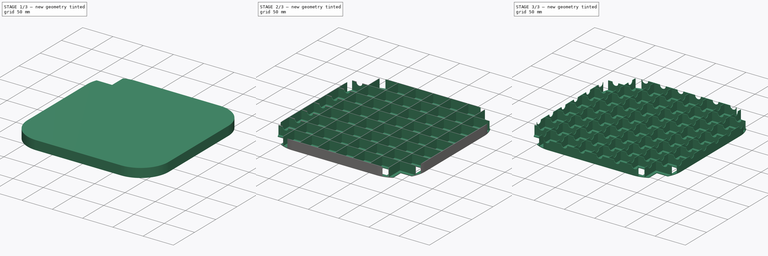
[diagram: build sequence overview — one tinted view per stage of 3, left to right]
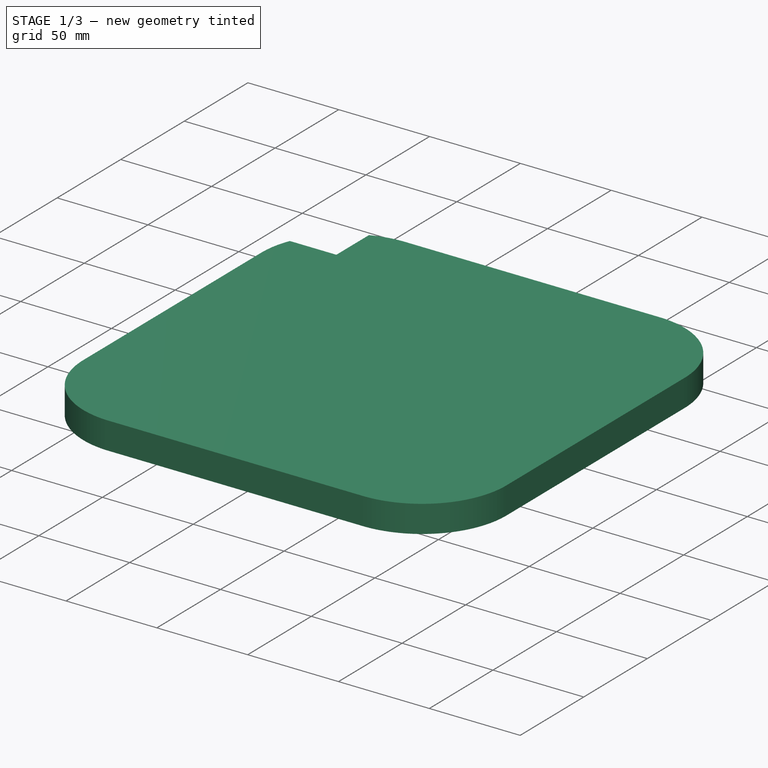
[diagram: stage 1 of 3 — iso view after this stage's code; geometry added in this stage tinted green]
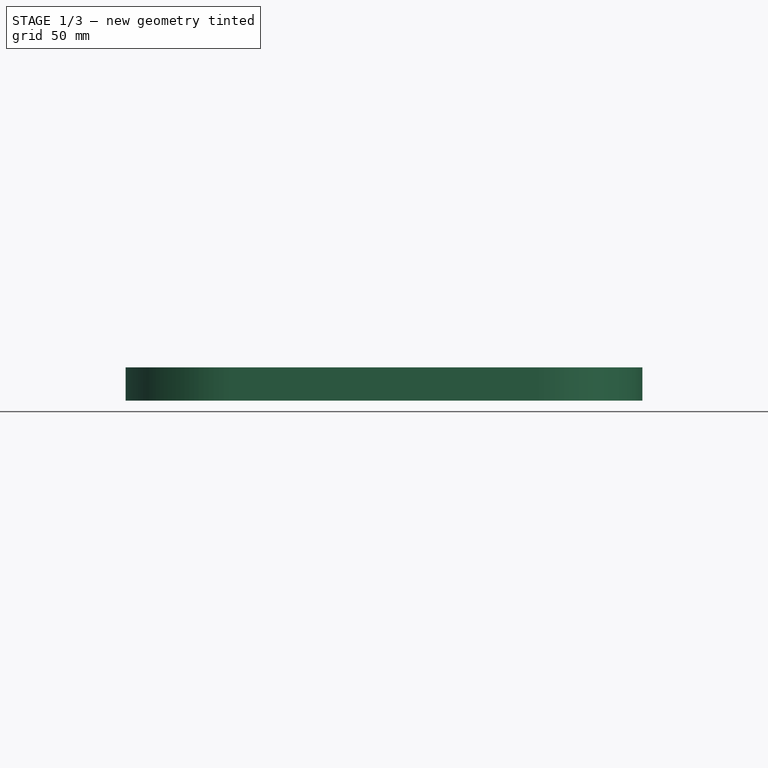
[diagram: stage 1 of 3 — front view after this stage's code; geometry added in this stage tinted green]
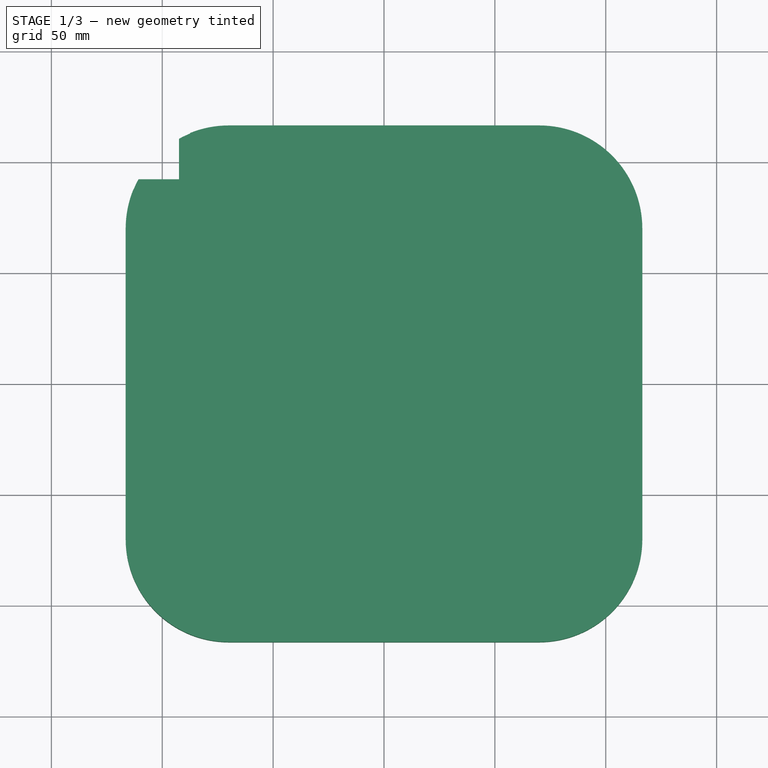
[diagram: stage 1 of 3 — top view after this stage's code; geometry added in this stage tinted green]
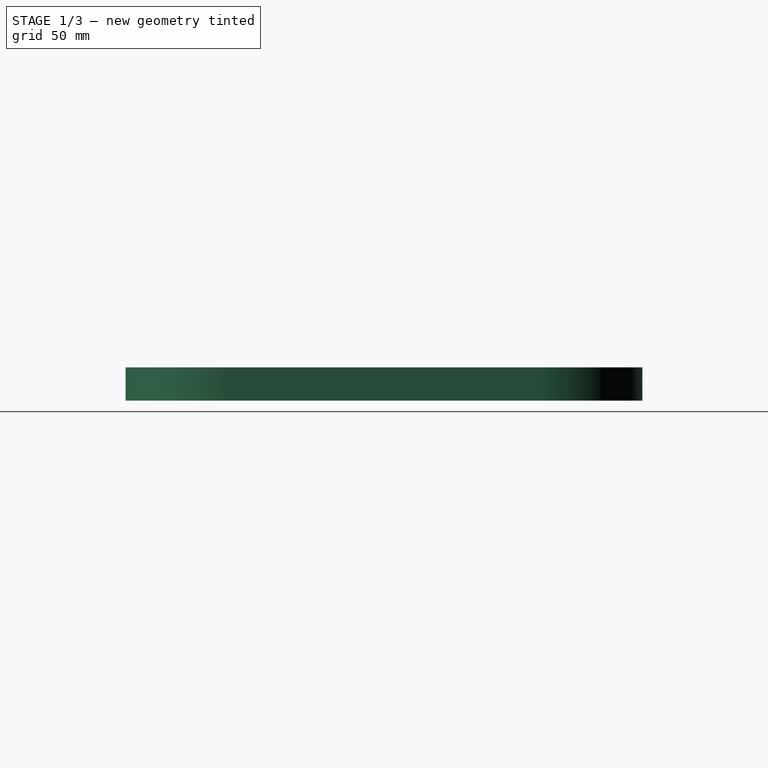
[diagram: stage 1 of 3 — right view after this stage's code; geometry added in this stage tinted green]
FCSTD DOCUMENT  (FreeCAD 0.21R33771 (Git))
Label: CatFountainRaiser
License: All rights reserved
LicenseURL: http://en.wikipedia.org/wiki/All_rights_reserved
objects: Sketcher::SketchObject×6, PartDesign::Pocket×4, PartDesign::LinearPattern×4, Spreadsheet::Sheet×1, PartDesign::Pad×1, PartDesign::MultiTransform×1, PartDesign::Body×1
note: 22 computed .brp shape members not serialized (recipe doc carries the construction recipe); baked Part::Feature solids carry a one-line shape summary decoded from their .brp

FEATURE [Spreadsheet::Sheet] Spreadsheet
  cells = B2='Size; C2(Size)==233 mm; B3='Count; C3(Count)=8; B4='WallThickness; C4(WallThickness)==0.8 mm; B5='TopThickness; C5(TopThickness)==1 mm; B6='TileSize; C6(TileSize)==(Size - .WallThickness * (Count + 1)) / Count; B7='TileOffset; C7(TileOffset)==TileSize + WallThickness
FEATURE [Sketcher::SketchObject] Sketch
  FullyConstrained = true
  MapMode = 5
  Support = -> [XY_Plane]
  expr: Constraints[10] = <<Spreadsheet>>.Size
  expr: Constraints[39] = <<Spreadsheet>>.WallThickness
  expr: Constraints[40] = <<Spreadsheet>>.TileSize
  sketch-geometry (15):
    g0: LineSegment StartX=-116.5 StartY=116.5 StartZ=0 EndX=116.5 EndY=116.5 EndZ=0
    g1: LineSegment StartX=116.5 StartY=116.5 StartZ=0 EndX=116.5 EndY=-116.5 EndZ=0
    g2: LineSegment StartX=116.5 StartY=-116.5 StartZ=0 EndX=-116.5 EndY=-116.5 EndZ=0
    g3: LineSegment StartX=-116.5 StartY=-116.5 StartZ=0 EndX=-116.5 EndY=116.5 EndZ=0
    g4: LineSegment StartX=-115.7 StartY=115.7 StartZ=0 EndX=-87.475 EndY=115.7 EndZ=0
    g5: LineSegment StartX=-87.475 StartY=115.7 StartZ=0 EndX=-87.475 EndY=87.475 EndZ=0
    g6: LineSegment StartX=-87.475 StartY=87.475 StartZ=0 EndX=-115.7 EndY=87.475 EndZ=0
    g7: LineSegment StartX=-115.7 StartY=87.475 StartZ=0 EndX=-115.7 EndY=115.7 EndZ=0
    g8: LineSegment StartX=-110.7 StartY=110.7 StartZ=0 EndX=-92.475 EndY=110.7 EndZ=0
    g9: LineSegment StartX=-92.475 StartY=110.7 StartZ=0 EndX=-92.475 EndY=92.475 EndZ=0
    g10: LineSegment StartX=-92.475 StartY=92.475 StartZ=0 EndX=-110.7 EndY=92.475 EndZ=0
    g11: LineSegment StartX=-110.7 StartY=92.475 StartZ=0 EndX=-110.7 EndY=110.7 EndZ=0
    g12: GeomPoint X=-101.588 Y=101.588 Z=0
    g13: LineSegment StartX=-115.7 StartY=115.7 StartZ=0 EndX=-116.5 EndY=115.7 EndZ=0
    g14: LineSegment StartX=-115.7 StartY=115.7 StartZ=0 EndX=-115.7 EndY=116.5 EndZ=0
  constraints (41):
    c: Coincident(g0,g1)
    c: Coincident(g1,g2)
    c: Coincident(g2,g3)
    c: Coincident(g3,g0)
    c: Horizontal(g0)
    c: Horizontal(g2)
    c: Vertical(g1)
    c: Vertical(g3)
    c: Symmetric(g2,g0,g-1)
    c: Equal(g0,g3)
    c: DistanceX(g0,g0) = 233
    c: Coincident(g4,g5)
    c: Coincident(g5,g6)
    c: Coincident(g6,g7)
    c: Coincident(g7,g4)
    c: Horizontal(g4)
    c: Horizontal(g6)
    c: Vertical(g5)
    c: Vertical(g7)
    c: Coincident(g8,g9)
    c: Coincident(g9,g10)
    c: Coincident(g10,g11)
    c: Coincident(g11,g8)
    c: Horizontal(g8)
    c: Horizontal(g10)
    c: Vertical(g9)
    c: Vertical(g11)
    c: Coincident(g13,g4)
    c: PointOnObject(g13,g3)
    c: Horizontal(g13)
    c: Coincident(g14,g4)
    c: PointOnObject(g14,g0)
    c: Vertical(g14)
    c: Equal(g7,g4)
    c: Equal(g14,g13)
    c: Equal(g8,g11)
    c: Symmetric(g6,g4,g12)
    c: Symmetric(g8,g9,g12)
    c: DistanceX(g6,g10) = 5
    c: DistanceY(g13,g0) = 0.8
    c: DistanceX(g4,g4) = 28.225
FEATURE [Sketcher::SketchObject] Sketch001
  AttachmentOffset = pos=(0,0,15) rot=(0,0,1;0rad)
  ExternalGeometry = -> [Sketch]
  FullyConstrained = true
  MapMode = 5
  Placement = pos=(0,0,15) rot=(0,0,1;0rad)
  Support = -> [XY_Plane]
  expr: .AttachmentOffset.Base.z = <<Pad>>.Length
  sketch-geometry (4):
    g0: LineSegment StartX=-115.7 StartY=115.7 StartZ=0 EndX=-87.475 EndY=115.7 EndZ=0
    g1: LineSegment StartX=-87.475 StartY=115.7 StartZ=0 EndX=-87.475 EndY=87.475 EndZ=0
    g2: LineSegment StartX=-87.475 StartY=87.475 StartZ=0 EndX=-115.7 EndY=87.475 EndZ=0
    g3: LineSegment StartX=-115.7 StartY=87.475 StartZ=0 EndX=-115.7 EndY=115.7 EndZ=0
  constraints (8):
    c: Coincident(g0,g1)
    c: Coincident(g1,g2)
    c: Coincident(g2,g3)
    c: Coincident(g3,g0)
    c: Coincident(g0,g-4)
    c: Coincident(g0,g-3)
    c: Coincident(g1,g-4)
    c: Coincident(g2,g-3)
FEATURE [Sketcher::SketchObject] Sketch002
  AttachmentOffset = pos=(0,0,1) rot=(0,0,1;0rad)
  ExternalGeometry = -> [Sketch]
  FullyConstrained = true
  MapMode = 5
  Placement = pos=(0,0,1) rot=(0,0,1;0rad)
  Support = -> [XY_Plane]
  expr: .AttachmentOffset.Base.z = <<Spreadsheet>>.TopThickness
  sketch-geometry (4):
    g0: LineSegment StartX=-110.7 StartY=110.7 StartZ=0 EndX=-92.475 EndY=110.7 EndZ=0
    g1: LineSegment StartX=-92.475 StartY=110.7 StartZ=0 EndX=-92.475 EndY=92.475 EndZ=0
    g2: LineSegment StartX=-92.475 StartY=92.475 StartZ=0 EndX=-110.7 EndY=92.475 EndZ=0
    g3: LineSegment StartX=-110.7 StartY=92.475 StartZ=0 EndX=-110.7 EndY=110.7 EndZ=0
  constraints (8):
    c: Coincident(g0,g1)
    c: Coincident(g1,g2)
    c: Coincident(g2,g3)
    c: Coincident(g3,g0)
    c: Coincident(g0,g-3)
    c: Coincident(g1,g-4)
    c: Coincident(g0,g-4)
    c: Coincident(g2,g-3)
FEATURE [Sketcher::SketchObject] Sketch003
  ExternalGeometry = -> [Sketch]
  FullyConstrained = true
  MapMode = 5
  Support = -> [XY_Plane]
  sketch-geometry (10):
    g0: ArcOfCircle CenterX=-69.981 CenterY=69.981 CenterZ=0 NormalX=0 NormalY=0 NormalZ=1 AngleXU=0 Radius=46.519 StartAngle=1.5708 EndAngle=3.14159
    g1: LineSegment StartX=-69.981 StartY=116.5 StartZ=0 EndX=69.981 EndY=116.5 EndZ=0
    g2: ArcOfCircle CenterX=69.981 CenterY=69.981 CenterZ=0 NormalX=0 NormalY=0 NormalZ=1 AngleXU=0 Radius=46.519 StartAngle=0 EndAngle=1.5708
    g3: LineSegment StartX=116.5 StartY=69.981 StartZ=0 EndX=116.5 EndY=-69.981 EndZ=0
    g4: ArcOfCircle CenterX=69.981 CenterY=-69.981 CenterZ=0 NormalX=0 NormalY=0 NormalZ=1 AngleXU=0 Radius=46.519 StartAngle=4.71239 EndAngle=6.28319
    g5: LineSegment StartX=69.981 StartY=-116.5 StartZ=0 EndX=-69.981 EndY=-116.5 EndZ=0
    g6: ArcOfCircle CenterX=-69.981 CenterY=-69.981 CenterZ=0 NormalX=0 NormalY=0 NormalZ=1 AngleXU=0 Radius=46.519 StartAngle=3.14159 EndAngle=4.71239
    g7: LineSegment StartX=-116.5 StartY=-69.981 StartZ=0 EndX=-116.5 EndY=69.981 EndZ=0
    g8: GeomPoint X=-116.5 Y=116.5 Z=0
    g9: GeomPoint X=116.5 Y=-116.5 Z=0
  constraints (25):
    c: Tangent(g0,g1) = 1.5708
    c: Tangent(g1,g2) = 1.5708
    c: Tangent(g2,g3) = 1.5708
    c: Tangent(g3,g4) = 1.5708
    c: Tangent(g4,g5) = 1.5708
    c: Tangent(g5,g6) = 1.5708
    c: Tangent(g6,g7) = 1.5708
    c: Tangent(g7,g0) = 1.5708
    c: Equal(g0,g2)
    c: Equal(g2,g4)
    c: Equal(g4,g6)
    c: PointOnObject(g8,g1)
    c: PointOnObject(g8,g7)
    c: PointOnObject(g9,g3)
    c: PointOnObject(g9,g5)
    c: PointOnObject(g0,g-6)
    c: PointOnObject(g6,g-6)
    c: PointOnObject(g2,g-4)
    c: PointOnObject(g3,g-4)
    c: PointOnObject(g1,g-3)
    c: PointOnObject(g0,g-3)
    c: PointOnObject(g5,g-5)
    c: PointOnObject(g4,g-5)
    c: PointOnObject(g-7,g0)
    c: Radius(g0) = 46.519
FEATURE [PartDesign::Pad] Pad
  Direction = (0,0,1)
  Length = 15
  Length2 = 10
  Profile = -> Sketch003
  ReferenceAxis = -> Sketch003 [N_Axis]
  Type = 0
FEATURE [PartDesign::Pocket] Pocket
  BaseFeature = -> Pad
  Direction = (0,0,-1)
  Length = 14
  Length2 = 5
  Profile = -> Sketch001
  ReferenceAxis = -> Sketch001 [N_Axis]
  Type = 0
  expr: Length = <<Pad>>.Length - <<Spreadsheet>>.TopThickness
FEATURE [PartDesign::Pocket] Pocket001
  BaseFeature = -> Pocket
  Direction = (0,0,-1)
  Length = 5
  Length2 = 5
  Profile = -> Sketch002
  ReferenceAxis = -> Sketch002 [N_Axis]
  Type = 1
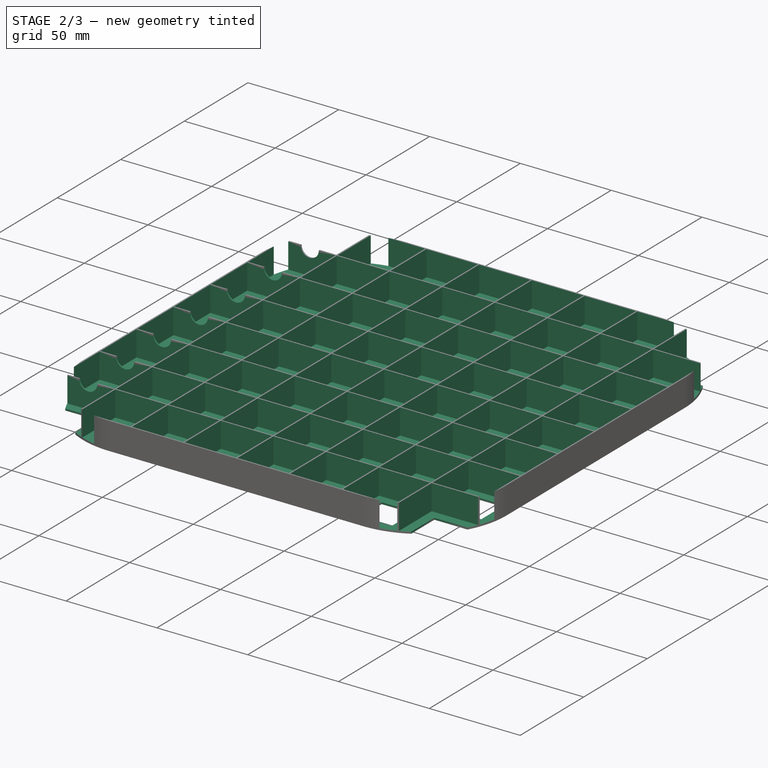
[diagram: stage 2 of 3 — iso view after this stage's code; geometry added in this stage tinted green]
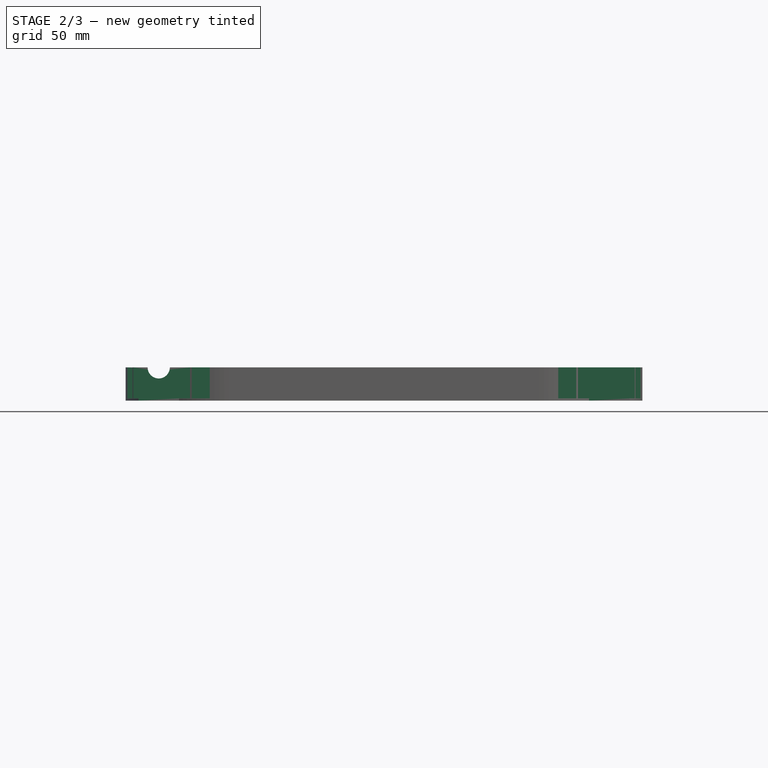
[diagram: stage 2 of 3 — front view after this stage's code; geometry added in this stage tinted green]
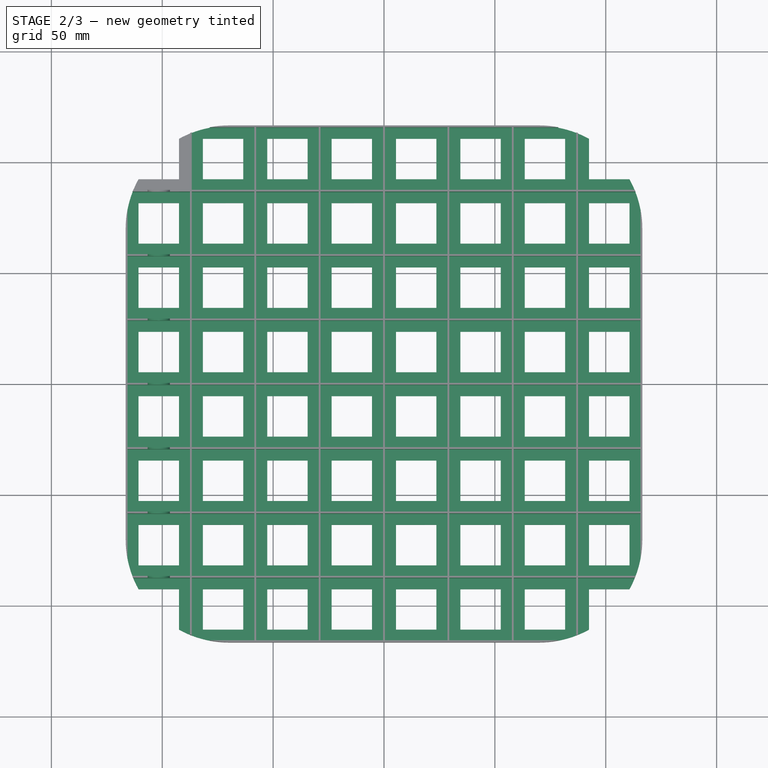
[diagram: stage 2 of 3 — top view after this stage's code; geometry added in this stage tinted green]
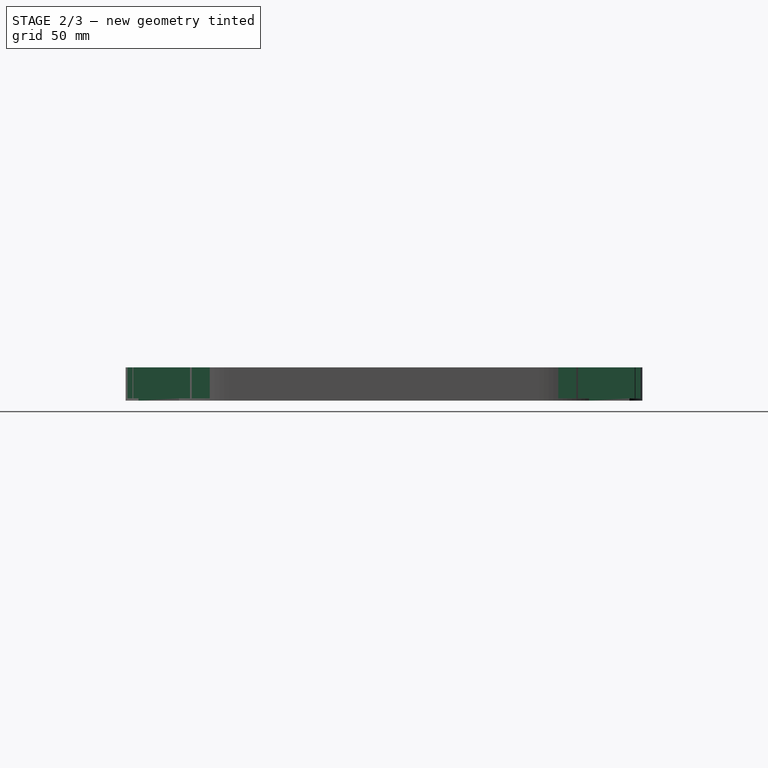
[diagram: stage 2 of 3 — right view after this stage's code; geometry added in this stage tinted green]
FEATURE [PartDesign::LinearPattern] LinearPattern
  Direction = -> Sketch001 [H_Axis]
  Length = 203.175
  Occurrences = 8
  expr: Length = <<Spreadsheet>>.TileOffset * (<<Spreadsheet>>.Count - 1)
  expr: Occurrences = <<Spreadsheet>>.Count
FEATURE [PartDesign::LinearPattern] LinearPattern001
  Direction = -> Sketch001 [V_Axis]
  Length = 203.175
  Occurrences = 8
  Reversed = true
  expr: Length = <<Spreadsheet>>.TileOffset * (<<Spreadsheet>>.Count - 1)
  expr: Occurrences = <<Spreadsheet>>.Count
FEATURE [PartDesign::MultiTransform] MultiTransform
  BaseFeature = -> Pocket001
  Originals = -> [Pocket,Pocket001]
  Transformations = -> [LinearPattern,LinearPattern001]
FEATURE [Sketcher::SketchObject] Sketch004
  ExternalGeometry = -> [Sketch]
  FullyConstrained = true
  MapMode = 5
  Placement = pos=(0,0,0) rot=(1,0,0;1.5708rad)
  Support = -> [XZ_Plane]
  expr: Constraints[10] = <<Pad>>.Length / 3
  expr: Constraints[7] = <<Pad>>.Length
  sketch-geometry (5):
    g0: LineSegment StartX=-115.7 StartY=-2.57e-14 StartZ=0 EndX=-115.7 EndY=15 EndZ=0
    g1: LineSegment StartX=-115.7 StartY=15 StartZ=0 EndX=-87.475 EndY=15 EndZ=0
    g2: LineSegment StartX=-87.475 StartY=15 StartZ=0 EndX=-87.475 EndY=0 EndZ=0
    g3: ArcOfCircle CenterX=-101.588 CenterY=15 CenterZ=0 NormalX=0 NormalY=0 NormalZ=1 AngleXU=0 Radius=5 StartAngle=3.14159 EndAngle=6.28319
    g4: LineSegment StartX=-106.588 StartY=15 StartZ=0 EndX=-96.5875 EndY=15 EndZ=0
  constraints (14):
    c: Coincident(g-3,g0)
    c: Vertical(g0)
    c: Coincident(g0,g1)
    c: Horizontal(g1)
    c: Coincident(g1,g2)
    c: Coincident(g2,g-3)
    c: Vertical(g2)
    c: DistanceY(g0,g0) = 15
    c: PointOnObject(g3,g1)
    c: PointOnObject(g3,g1)
    c: Radius(g3) = 5
    c: Symmetric(g0,g1,g3)
    c: Coincident(g4,g3)
    c: Coincident(g4,g3)
FEATURE [PartDesign::Pocket] Pocket002
  BaseFeature = -> MultiTransform
  Direction = (0,1,2e-16)
  Length = 5
  Length2 = 5
  Midplane = true
  Profile = -> Sketch004
  ReferenceAxis = -> Sketch004 [N_Axis]
  Type = 1
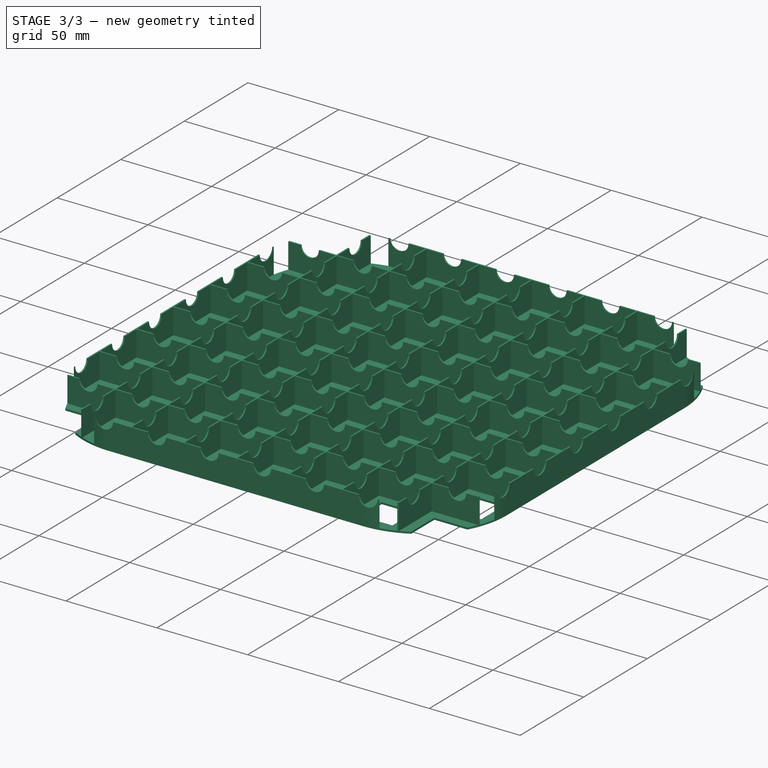
[diagram: stage 3 of 3 — iso view after this stage's code; geometry added in this stage tinted green]
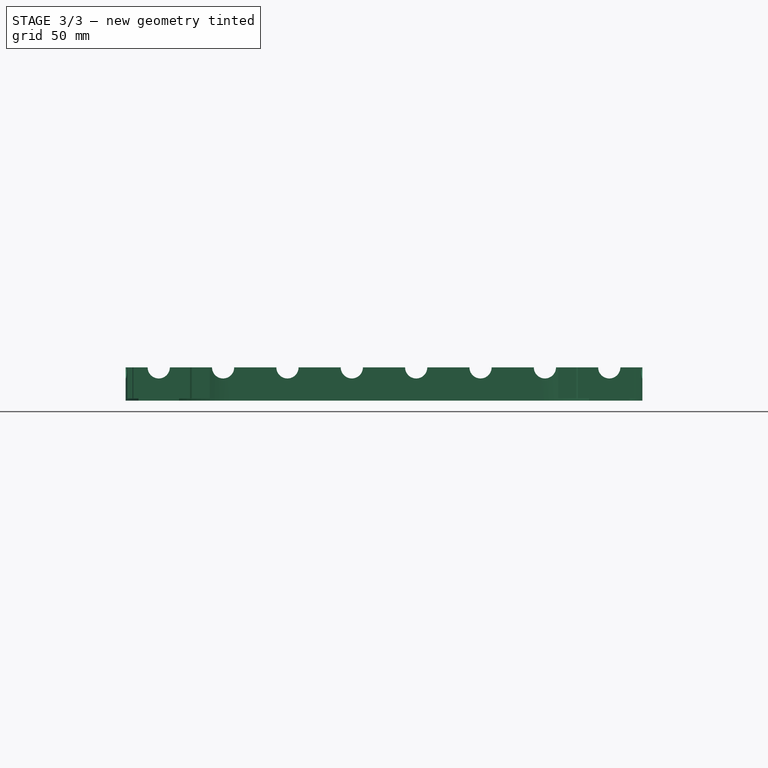
[diagram: stage 3 of 3 — front view after this stage's code; geometry added in this stage tinted green]
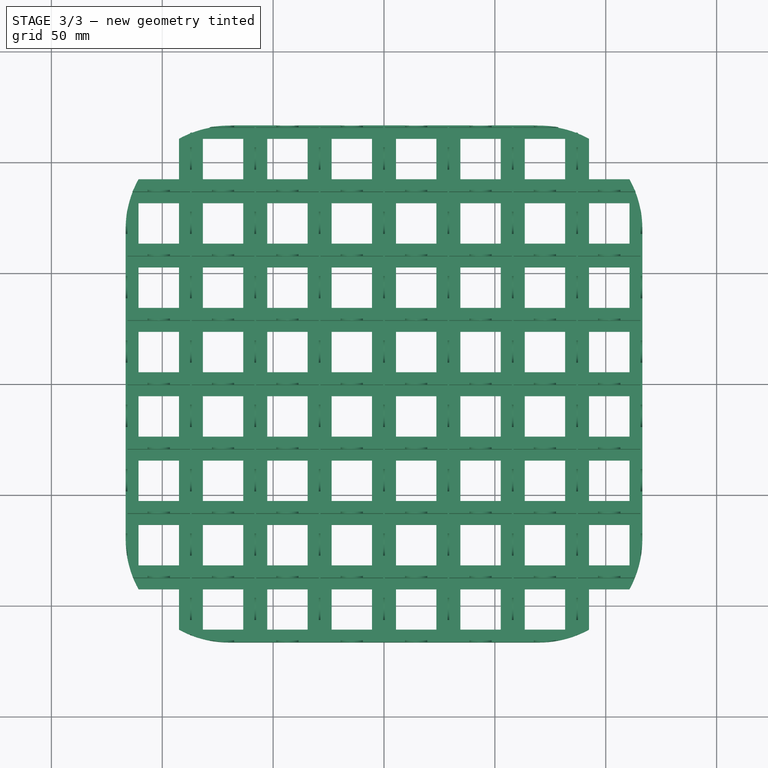
[diagram: stage 3 of 3 — top view after this stage's code; geometry added in this stage tinted green]
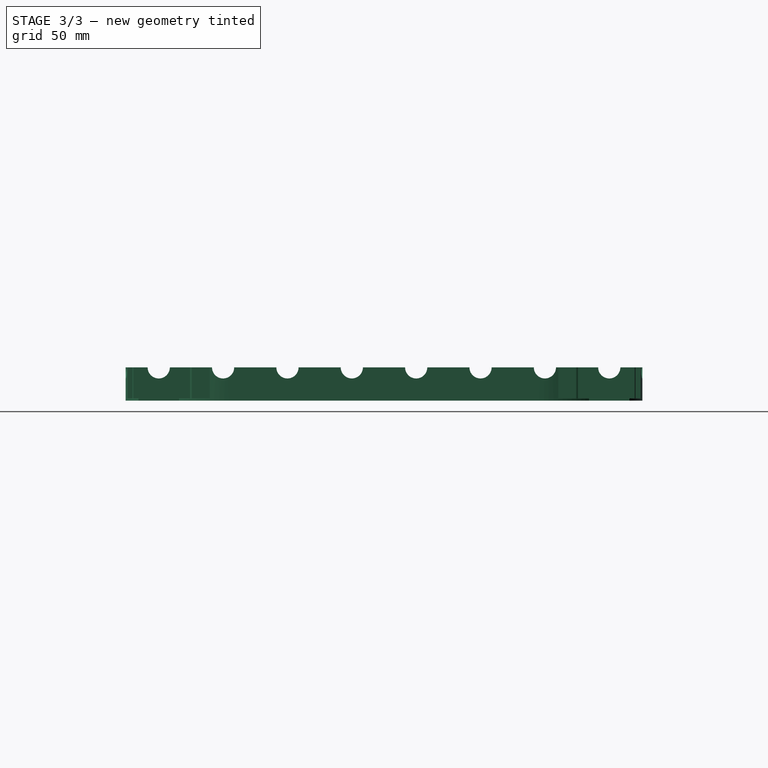
[diagram: stage 3 of 3 — right view after this stage's code; geometry added in this stage tinted green]
FEATURE [PartDesign::LinearPattern] LinearPattern002
  BaseFeature = -> Pocket002
  Direction = -> Sketch004 [H_Axis]
  Length = 203.175
  Occurrences = 8
  Originals = -> [Pocket002]
  expr: Length = <<Spreadsheet>>.TileOffset * (<<Spreadsheet>>.Count - 1)
  expr: Occurrences = <<Spreadsheet>>.Count
FEATURE [Sketcher::SketchObject] Sketch005
  ExternalGeometry = -> [Sketch]
  FullyConstrained = true
  MapMode = 5
  Placement = pos=(0,0,0) rot=(0.57735,0.57735,0.57735;2.0944rad)
  Support = -> [YZ_Plane]
  expr: Constraints[10] = <<Pad>>.Length / 3
  expr: Constraints[7] = <<Pad>>.Length
  sketch-geometry (5):
    g0: LineSegment StartX=87.475 StartY=0 StartZ=0 EndX=87.475 EndY=15 EndZ=0
    g1: LineSegment StartX=87.475 StartY=15 StartZ=0 EndX=115.7 EndY=15 EndZ=0
    g2: LineSegment StartX=115.7 StartY=15 StartZ=0 EndX=115.7 EndY=6.39e-14 EndZ=0
    g3: ArcOfCircle CenterX=101.587 CenterY=15 CenterZ=0 NormalX=0 NormalY=0 NormalZ=1 AngleXU=0 Radius=5 StartAngle=3.14159 EndAngle=6.28319
    g4: LineSegment StartX=96.5875 StartY=15 StartZ=0 EndX=106.587 EndY=15 EndZ=0
  constraints (14):
    c: Coincident(g-3,g0)
    c: Vertical(g0)
    c: Coincident(g0,g1)
    c: Horizontal(g1)
    c: Coincident(g1,g2)
    c: Coincident(g2,g-3)
    c: Vertical(g2)
    c: DistanceY(g2,g2) = 15
    c: PointOnObject(g3,g1)
    c: PointOnObject(g3,g1)
    c: Radius(g3) = 5
    c: Symmetric(g0,g1,g3)
    c: Coincident(g4,g3)
    c: Coincident(g4,g3)
FEATURE [PartDesign::Pocket] Pocket003
  BaseFeature = -> LinearPattern002
  Direction = (-1,2e-16,-3e-16)
  Length = 5
  Length2 = 5
  Midplane = true
  Profile = -> Sketch005
  ReferenceAxis = -> Sketch005 [N_Axis]
  Type = 1
FEATURE [PartDesign::LinearPattern] LinearPattern003
  BaseFeature = -> Pocket003
  Direction = -> Sketch005 [H_Axis]
  Length = 203.175
  Occurrences = 8
  Originals = -> [Pocket003]
  Reversed = true
  expr: Length = <<Spreadsheet>>.TileOffset * (<<Spreadsheet>>.Count - 1)
  expr: Occurrences = <<Spreadsheet>>.Count
FEATURE [PartDesign::Body] Body
  Group = -> [Sketch,Sketch003,Sketch001,Sketch002,Pad,Pocket,Pocket001,MultiTransform,LinearPattern,LinearPattern001,Sketch004,Pocket002,LinearPattern002,Sketch005,Pocket003,LinearPattern003]
  Origin = -> Origin
  Tip = -> LinearPattern003
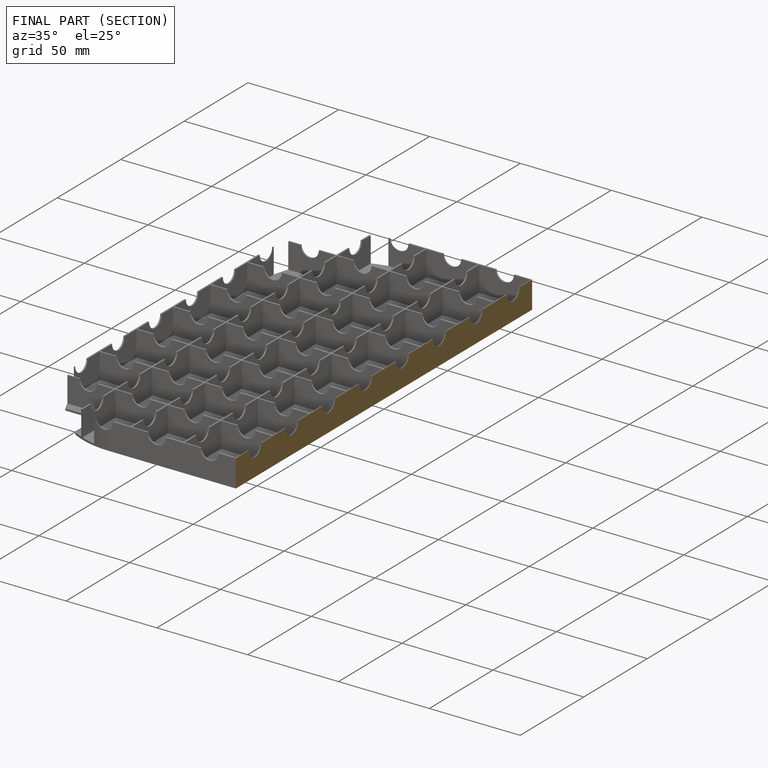
[diagram: finished part — half-section view (interior)]
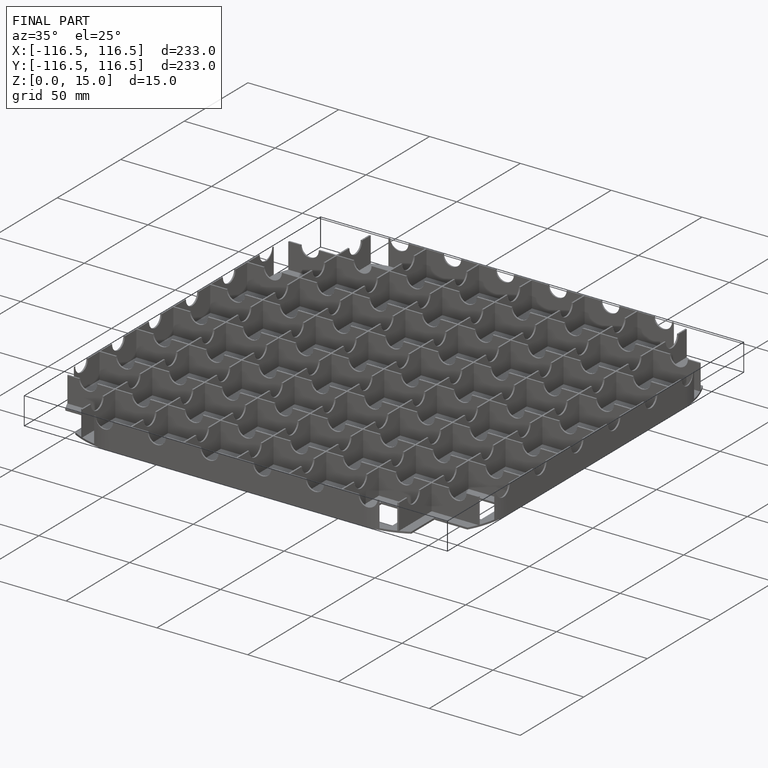
[diagram: finished part — iso view with bounding-box wireframe]
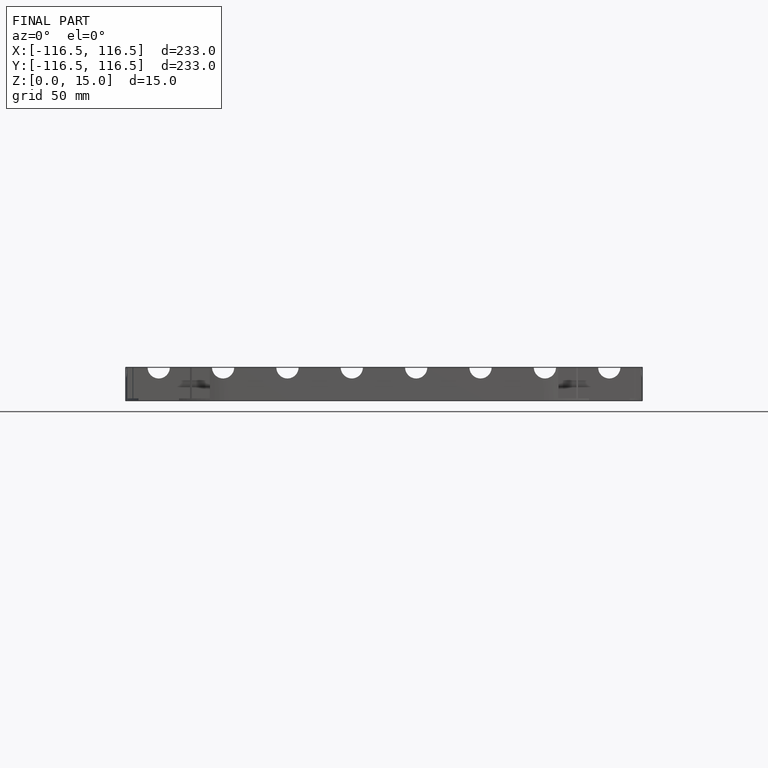
[diagram: finished part — front view with bounding-box wireframe]
